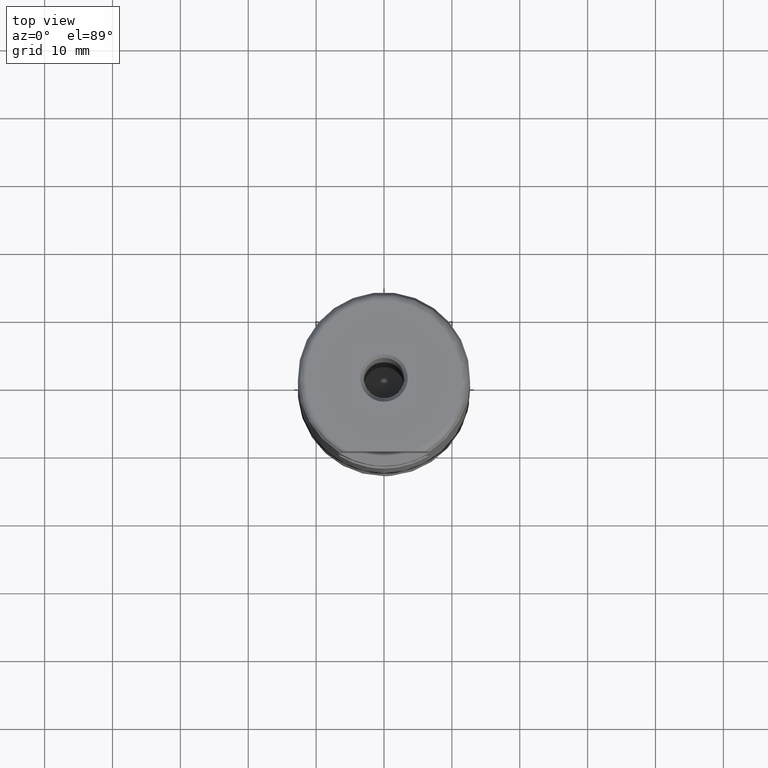
[diagram: clean part render]
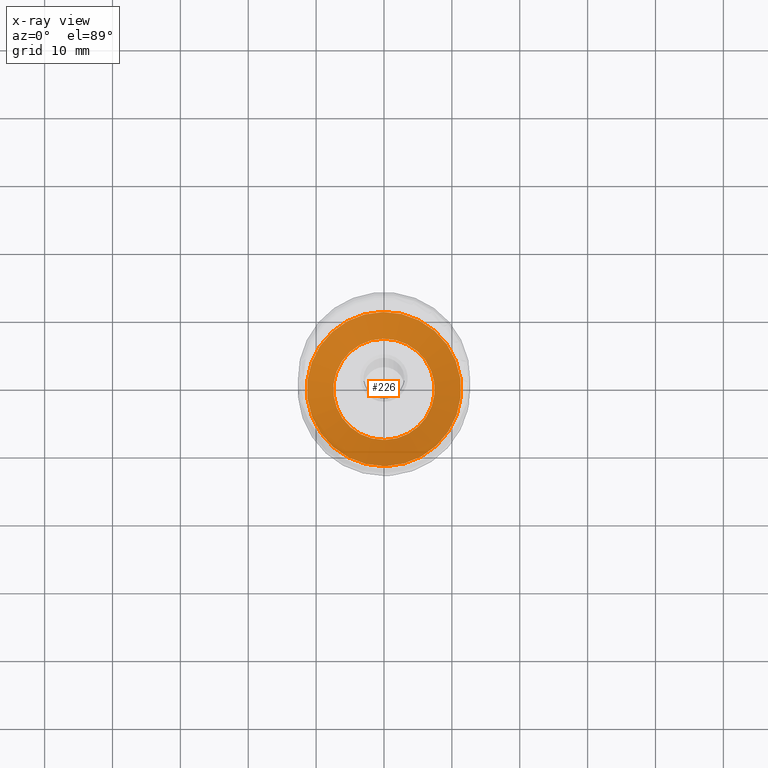
[diagram: x-ray — body ghosted, one internal face saturated and labeled with its STEP entity id]
A machine part, top view, then the same camera in x-ray: the body is ghosted and one INTERNAL B-rep face — a face not visible from any outside direction — is saturated and labeled: STEP entity #226.
In plain terms, the highlighted face is a SurfaceOfRevolution surface.
Its self-contained STEP definition (entity closure, byte-faithful):
#114=SURFACE_OF_REVOLUTION('',#799,#135);
#135=AXIS1_PLACEMENT('',#1556,#1033);
#226=ADVANCED_FACE('',(#338,#339),#114,.F.);
#338=FACE_BOUND('',#428,.T.);
#339=FACE_BOUND('',#429,.T.);
#428=EDGE_LOOP('',(#564));
#429=EDGE_LOOP('',(#565));
#564=ORIENTED_EDGE('',*,*,#707,.T.);
#565=ORIENTED_EDGE('',*,*,#708,.F.);
#639=VERTEX_POINT('',#1529);
#640=VERTEX_POINT('',#1543);
#707=EDGE_CURVE('',#639,#639,#749,.T.);
#708=EDGE_CURVE('',#640,#640,#750,.T.);
#749=CIRCLE('',#871,11.3582346503366);
#750=CIRCLE('',#872,7.46198423984085);
#799=B_SPLINE_CURVE_WITH_KNOTS('',3,(#1544,#1545,#1546,#1547,#1548,#1549,
#1550,#1551,#1552,#1553,#1554,#1555),.UNSPECIFIED.,.F.,.F.,(4,1,1,1,1,1,
1,1,1,4),(0.,0.221418157861957,0.365983083750147,0.510548009638337,0.655112935526527,
0.799677861414718,0.871960324358813,0.90810155583086,0.944242787302908,
1.),.UNSPECIFIED.);
#871=AXIS2_PLACEMENT_3D('',#1528,#1028,#1029);
#872=AXIS2_PLACEMENT_3D('',#1542,#1031,#1032);
#1028=DIRECTION('',(0.,1.17145536458252E-15,1.));
#1029=DIRECTION('',(0.,-1.,1.14546199038426E-15));
#1031=DIRECTION('',(0.,1.17145536458252E-15,1.));
#1032=DIRECTION('',(0.,-1.,1.16237412209665E-15));
#1033=DIRECTION('',(0.,1.17145536458252E-15,1.));
#1528=CARTESIAN_POINT('',(0.,8.56591029082361E-15,7.31219519736142));
#1529=CARTESIAN_POINT('',(0.,-11.3582346503366,7.31219519736143));
#1542=CARTESIAN_POINT('',(0.,6.03260540841171E-15,5.14966732049716));
#1543=CARTESIAN_POINT('',(0.,-7.46198423984084,5.14966732049717));
#1544=CARTESIAN_POINT('',(7.44263241348606,-0.537060364788832,5.14966761762804));
#1545=CARTESIAN_POINT('',(7.72479526063177,-0.536212608263279,5.319851776791));
#1546=CARTESIAN_POINT('',(8.19311667087047,-0.535379317988011,5.59795023877837));
#1547=CARTESIAN_POINT('',(8.85258000983731,-0.53608181685596,5.9752795548306));
#1548=CARTESIAN_POINT('',(9.41701626675732,-0.537992015684476,6.28827745402961));
#1549=CARTESIAN_POINT('',(9.98507463781776,-0.541048638881507,6.59465446465612));
#1550=CARTESIAN_POINT('',(10.4600893772582,-0.544035733592179,6.84691594980076));
#1551=CARTESIAN_POINT('',(10.7931240731429,-0.546571112455456,7.02251164122998));
#1552=CARTESIAN_POINT('',(10.98358384974,-0.547566911237371,7.12251655005486));
#1553=CARTESIAN_POINT('',(11.1525521368132,-0.550162765511046,7.21095305789321));
#1554=CARTESIAN_POINT('',(11.2730417300028,-0.535148863423146,7.27399070374262));
#1555=CARTESIAN_POINT('',(11.3460890887647,-0.52512547255068,7.31219519736142));
#1556=CARTESIAN_POINT('',(0.,0.,0.));